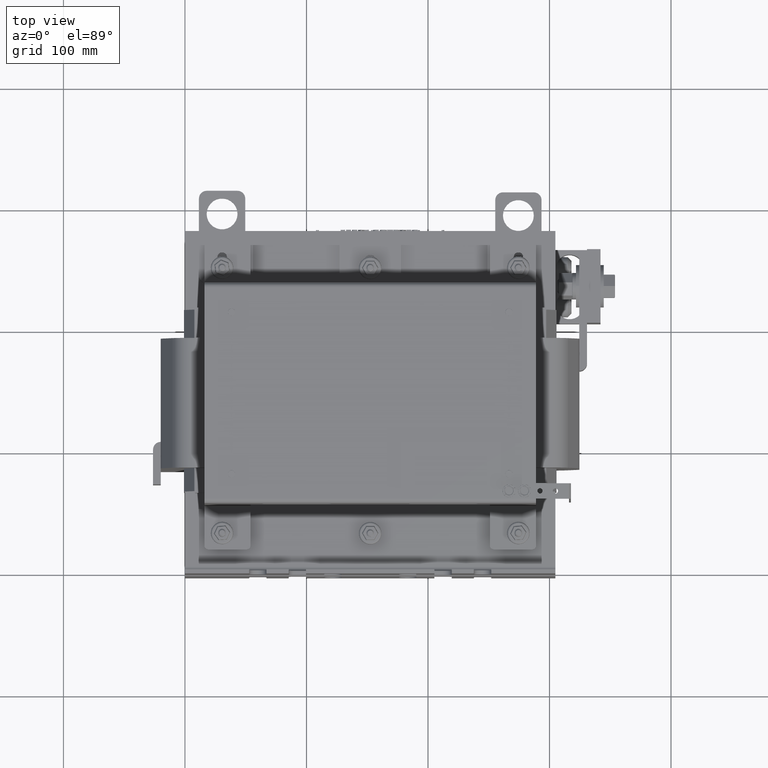
[diagram: clean part render]
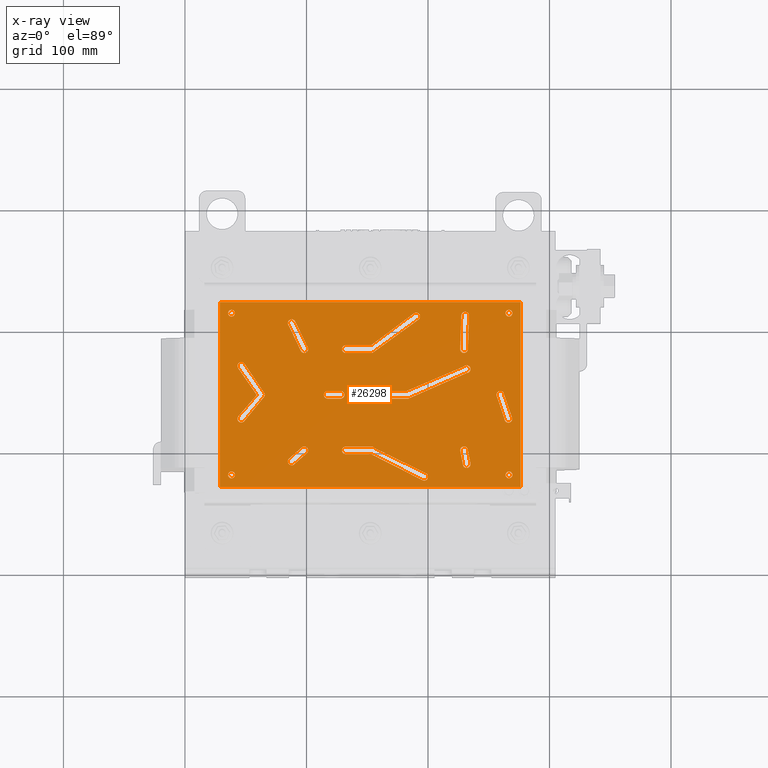
[diagram: x-ray — body ghosted, one internal face saturated and labeled with its STEP entity id]
A machine part, top view, then the same camera in x-ray: the body is ghosted and one INTERNAL B-rep face — a face not visible from any outside direction — is saturated and labeled: STEP entity #26298.
In plain terms, the highlighted planar face has unit normal (0, -0, 1).
Its self-contained STEP definition (entity closure, byte-faithful):
#1879=FACE_BOUND('',#5372,.T.);
#1880=FACE_BOUND('',#5373,.T.);
#1881=FACE_BOUND('',#5374,.T.);
#1882=FACE_BOUND('',#5375,.T.);
#1883=FACE_BOUND('',#5376,.T.);
#1884=FACE_BOUND('',#5377,.T.);
#1885=FACE_BOUND('',#5378,.T.);
#1886=FACE_BOUND('',#5379,.T.);
#1887=FACE_BOUND('',#5380,.T.);
#1888=FACE_BOUND('',#5381,.T.);
#1889=FACE_BOUND('',#5382,.T.);
#1890=FACE_BOUND('',#5383,.T.);
#1891=FACE_BOUND('',#5384,.T.);
#1892=FACE_BOUND('',#5385,.T.);
#2582=PLANE('',#28913);
#3795=FACE_OUTER_BOUND('',#5371,.T.);
#5371=EDGE_LOOP('',(#22557,#22558,#22559,#22560));
#5372=EDGE_LOOP('',(#22561,#22562,#22563,#22564));
#5373=EDGE_LOOP('',(#22565,#22566,#22567,#22568));
#5374=EDGE_LOOP('',(#22569,#22570,#22571,#22572,#22573,#22574,#22575,#22576));
#5375=EDGE_LOOP('',(#22577,#22578,#22579,#22580,#22581,#22582,#22583));
#5376=EDGE_LOOP('',(#22584,#22585,#22586,#22587,#22588,#22589,#22590));
#5377=EDGE_LOOP('',(#22591,#22592,#22593,#22594));
#5378=EDGE_LOOP('',(#22595,#22596,#22597,#22598,#22599,#22600,#22601));
#5379=EDGE_LOOP('',(#22602,#22603,#22604,#22605));
#5380=EDGE_LOOP('',(#22606,#22607,#22608,#22609));
#5381=EDGE_LOOP('',(#22610,#22611,#22612,#22613));
#5382=EDGE_LOOP('',(#22614));
#5383=EDGE_LOOP('',(#22615));
#5384=EDGE_LOOP('',(#22616));
#5385=EDGE_LOOP('',(#22617));
#7662=LINE('',#44718,#10065);
#7667=LINE('',#44732,#10070);
#7671=LINE('',#44741,#10074);
#7677=LINE('',#44753,#10080);
#7678=LINE('',#44766,#10081);
#7682=LINE('',#44775,#10085);
#7687=LINE('',#44789,#10090);
#7691=LINE('',#44801,#10094);
#7694=LINE('',#44808,#10097);
#7699=LINE('',#44822,#10102);
#7705=LINE('',#44834,#10108);
#7706=LINE('',#44838,#10109);
#7716=LINE('',#44887,#10119);
#7718=LINE('',#44905,#10121);
#7719=LINE('',#44907,#10122);
#7720=LINE('',#44909,#10123);
#7721=LINE('',#44910,#10124);
#7722=LINE('',#44913,#10125);
#7723=LINE('',#44916,#10126);
#7724=LINE('',#44920,#10127);
#7725=LINE('',#44924,#10128);
#7726=LINE('',#44926,#10129);
#7727=LINE('',#44930,#10130);
#7728=LINE('',#44934,#10131);
#7729=LINE('',#44938,#10132);
#7730=LINE('',#44942,#10133);
#7731=LINE('',#44947,#10134);
#7732=LINE('',#44950,#10135);
#7733=LINE('',#44955,#10136);
#7734=LINE('',#44958,#10137);
#7735=LINE('',#44961,#10138);
#7736=LINE('',#44965,#10139);
#10065=VECTOR('',#34062,0.393700787401575);
#10070=VECTOR('',#34075,0.393700787401575);
#10074=VECTOR('',#34081,0.393700787401575);
#10080=VECTOR('',#34089,0.393700787401575);
#10081=VECTOR('',#34106,0.393700787401575);
#10085=VECTOR('',#34112,0.393700787401575);
#10090=VECTOR('',#34125,0.393700787401575);
#10094=VECTOR('',#34137,0.393700787401575);
#10097=VECTOR('',#34142,0.393700787401575);
#10102=VECTOR('',#34155,0.393700787401575);
#10108=VECTOR('',#34163,0.393700787401575);
#10109=VECTOR('',#34166,0.393700787401575);
#10119=VECTOR('',#34222,0.393700787401575);
#10121=VECTOR('',#34240,0.393700787401575);
#10122=VECTOR('',#34241,0.393700787401575);
#10123=VECTOR('',#34242,0.393700787401575);
#10124=VECTOR('',#34243,0.393700787401575);
#10125=VECTOR('',#34246,0.393700787401575);
#10126=VECTOR('',#34249,0.393700787401575);
#10127=VECTOR('',#34252,0.393700787401575);
#10128=VECTOR('',#34255,0.393700787401575);
#10129=VECTOR('',#34256,0.393700787401575);
#10130=VECTOR('',#34259,0.393700787401575);
#10131=VECTOR('',#34262,0.393700787401575);
#10132=VECTOR('',#34265,0.393700787401575);
#10133=VECTOR('',#34268,0.393700787401575);
#10134=VECTOR('',#34273,0.393700787401575);
#10135=VECTOR('',#34276,0.393700787401575);
#10136=VECTOR('',#34279,0.393700787401575);
#10137=VECTOR('',#34282,0.393700787401575);
#10138=VECTOR('',#34283,0.393700787401575);
#10139=VECTOR('',#34286,0.393700787401575);
#11130=CIRCLE('',#28854,0.125);
#11133=CIRCLE('',#28862,0.125);
#11136=CIRCLE('',#28869,0.125000000000001);
#11138=CIRCLE('',#28873,0.125);
#11140=CIRCLE('',#28878,0.125);
#11142=CIRCLE('',#28884,0.125);
#11145=CIRCLE('',#28888,0.125);
#11149=CIRCLE('',#28894,0.125);
#11152=CIRCLE('',#28898,0.125);
#11164=CIRCLE('',#28914,0.125000000000001);
#11165=CIRCLE('',#28915,0.125);
#11166=CIRCLE('',#28916,0.125);
#11167=CIRCLE('',#28917,0.125);
#11168=CIRCLE('',#28918,0.125);
#11169=CIRCLE('',#28919,0.110977153248394);
#11170=CIRCLE('',#28920,0.125);
#11171=CIRCLE('',#28921,0.125);
#11172=CIRCLE('',#28922,0.125);
#11173=CIRCLE('',#28923,0.125);
#11174=CIRCLE('',#28924,0.125);
#11175=CIRCLE('',#28925,0.125);
#11176=CIRCLE('',#28926,0.125);
#11177=CIRCLE('',#28927,0.125);
#11178=CIRCLE('',#28928,0.125);
#11179=CIRCLE('',#28929,0.125);
#11180=CIRCLE('',#28930,0.11);
#11181=CIRCLE('',#28931,0.11);
#11182=CIRCLE('',#28932,0.11);
#11183=CIRCLE('',#28933,0.11);
#13153=VERTEX_POINT('',#44716);
#13154=VERTEX_POINT('',#44717);
#13157=VERTEX_POINT('',#44725);
#13159=VERTEX_POINT('',#44731);
#13161=VERTEX_POINT('',#44737);
#13163=VERTEX_POINT('',#44740);
#13166=VERTEX_POINT('',#44747);
#13168=VERTEX_POINT('',#44751);
#13171=VERTEX_POINT('',#44764);
#13172=VERTEX_POINT('',#44765);
#13175=VERTEX_POINT('',#44773);
#13176=VERTEX_POINT('',#44774);
#13179=VERTEX_POINT('',#44785);
#13181=VERTEX_POINT('',#44788);
#13183=VERTEX_POINT('',#44794);
#13185=VERTEX_POINT('',#44800);
#13187=VERTEX_POINT('',#44806);
#13188=VERTEX_POINT('',#44807);
#13191=VERTEX_POINT('',#44815);
#13193=VERTEX_POINT('',#44821);
#13196=VERTEX_POINT('',#44828);
#13198=VERTEX_POINT('',#44832);
#13199=VERTEX_POINT('',#44836);
#13200=VERTEX_POINT('',#44837);
#13205=VERTEX_POINT('',#44857);
#13208=VERTEX_POINT('',#44865);
#13216=VERTEX_POINT('',#44885);
#13223=VERTEX_POINT('',#44903);
#13224=VERTEX_POINT('',#44904);
#13225=VERTEX_POINT('',#44906);
#13226=VERTEX_POINT('',#44908);
#13227=VERTEX_POINT('',#44912);
#13228=VERTEX_POINT('',#44914);
#13229=VERTEX_POINT('',#44917);
#13230=VERTEX_POINT('',#44919);
#13231=VERTEX_POINT('',#44922);
#13232=VERTEX_POINT('',#44923);
#13233=VERTEX_POINT('',#44925);
#13234=VERTEX_POINT('',#44927);
#13235=VERTEX_POINT('',#44929);
#13236=VERTEX_POINT('',#44931);
#13237=VERTEX_POINT('',#44933);
#13238=VERTEX_POINT('',#44936);
#13239=VERTEX_POINT('',#44937);
#13240=VERTEX_POINT('',#44939);
#13241=VERTEX_POINT('',#44941);
#13242=VERTEX_POINT('',#44944);
#13243=VERTEX_POINT('',#44946);
#13244=VERTEX_POINT('',#44948);
#13245=VERTEX_POINT('',#44951);
#13246=VERTEX_POINT('',#44952);
#13247=VERTEX_POINT('',#44954);
#13248=VERTEX_POINT('',#44956);
#13249=VERTEX_POINT('',#44959);
#13250=VERTEX_POINT('',#44960);
#13251=VERTEX_POINT('',#44962);
#13252=VERTEX_POINT('',#44964);
#13253=VERTEX_POINT('',#44968);
#13254=VERTEX_POINT('',#44970);
#13255=VERTEX_POINT('',#44972);
#13256=VERTEX_POINT('',#44974);
#16372=EDGE_CURVE('',#13153,#13154,#7662,.T.);
#16376=EDGE_CURVE('',#13157,#13153,#11130,.T.);
#16379=EDGE_CURVE('',#13159,#13157,#7667,.T.);
#16383=EDGE_CURVE('',#13163,#13161,#7671,.T.);
#16389=EDGE_CURVE('',#13166,#13168,#7677,.T.);
#16391=EDGE_CURVE('',#13168,#13163,#11133,.T.);
#16394=EDGE_CURVE('',#13171,#13172,#7678,.T.);
#16398=EDGE_CURVE('',#13175,#13176,#7682,.T.);
#16402=EDGE_CURVE('',#13172,#13175,#11136,.T.);
#16405=EDGE_CURVE('',#13181,#13179,#7687,.T.);
#16408=EDGE_CURVE('',#13183,#13181,#11138,.T.);
#16411=EDGE_CURVE('',#13185,#13183,#7691,.T.);
#16414=EDGE_CURVE('',#13187,#13188,#7694,.T.);
#16418=EDGE_CURVE('',#13191,#13187,#11140,.T.);
#16421=EDGE_CURVE('',#13193,#13191,#7699,.T.);
#16427=EDGE_CURVE('',#13196,#13198,#7705,.T.);
#16428=EDGE_CURVE('',#13199,#13200,#7706,.T.);
#16432=EDGE_CURVE('',#13198,#13199,#11142,.T.);
#16435=EDGE_CURVE('',#13154,#13159,#11145,.T.);
#16439=EDGE_CURVE('',#13205,#13185,#11149,.T.);
#16444=EDGE_CURVE('',#13179,#13208,#11152,.T.);
#16454=EDGE_CURVE('',#13188,#13216,#7716,.T.);
#16462=EDGE_CURVE('',#13223,#13224,#7718,.T.);
#16463=EDGE_CURVE('',#13225,#13223,#7719,.T.);
#16464=EDGE_CURVE('',#13226,#13225,#7720,.T.);
#16465=EDGE_CURVE('',#13224,#13226,#7721,.T.);
#16466=EDGE_CURVE('',#13161,#13166,#11164,.T.);
#16467=EDGE_CURVE('',#13208,#13227,#7722,.T.);
#16468=EDGE_CURVE('',#13227,#13228,#11165,.T.);
#16469=EDGE_CURVE('',#13228,#13205,#7723,.T.);
#16470=EDGE_CURVE('',#13216,#13229,#11166,.T.);
#16471=EDGE_CURVE('',#13229,#13230,#7724,.T.);
#16472=EDGE_CURVE('',#13230,#13193,#11167,.T.);
#16473=EDGE_CURVE('',#13231,#13232,#7725,.T.);
#16474=EDGE_CURVE('',#13232,#13233,#7726,.T.);
#16475=EDGE_CURVE('',#13233,#13234,#11168,.T.);
#16476=EDGE_CURVE('',#13234,#13235,#7727,.T.);
#16477=EDGE_CURVE('',#13235,#13236,#11169,.T.);
#16478=EDGE_CURVE('',#13236,#13237,#7728,.T.);
#16479=EDGE_CURVE('',#13237,#13231,#11170,.T.);
#16480=EDGE_CURVE('',#13238,#13239,#7729,.T.);
#16481=EDGE_CURVE('',#13239,#13240,#11171,.T.);
#16482=EDGE_CURVE('',#13240,#13241,#7730,.T.);
#16483=EDGE_CURVE('',#13241,#13238,#11172,.T.);
#16484=EDGE_CURVE('',#13200,#13242,#11173,.T.);
#16485=EDGE_CURVE('',#13242,#13243,#7731,.T.);
#16486=EDGE_CURVE('',#13243,#13244,#11174,.T.);
#16487=EDGE_CURVE('',#13244,#13196,#7732,.T.);
#16488=EDGE_CURVE('',#13245,#13246,#11175,.T.);
#16489=EDGE_CURVE('',#13246,#13247,#7733,.T.);
#16490=EDGE_CURVE('',#13247,#13248,#11176,.T.);
#16491=EDGE_CURVE('',#13248,#13245,#7734,.T.);
#16492=EDGE_CURVE('',#13249,#13250,#7735,.T.);
#16493=EDGE_CURVE('',#13250,#13251,#11177,.T.);
#16494=EDGE_CURVE('',#13251,#13252,#7736,.T.);
#16495=EDGE_CURVE('',#13252,#13249,#11178,.T.);
#16496=EDGE_CURVE('',#13176,#13171,#11179,.T.);
#16497=EDGE_CURVE('',#13253,#13253,#11180,.T.);
#16498=EDGE_CURVE('',#13254,#13254,#11181,.T.);
#16499=EDGE_CURVE('',#13255,#13255,#11182,.T.);
#16500=EDGE_CURVE('',#13256,#13256,#11183,.T.);
#22557=ORIENTED_EDGE('',*,*,#16462,.F.);
#22558=ORIENTED_EDGE('',*,*,#16463,.F.);
#22559=ORIENTED_EDGE('',*,*,#16464,.F.);
#22560=ORIENTED_EDGE('',*,*,#16465,.F.);
#22561=ORIENTED_EDGE('',*,*,#16372,.T.);
#22562=ORIENTED_EDGE('',*,*,#16435,.T.);
#22563=ORIENTED_EDGE('',*,*,#16379,.T.);
#22564=ORIENTED_EDGE('',*,*,#16376,.T.);
#22565=ORIENTED_EDGE('',*,*,#16383,.T.);
#22566=ORIENTED_EDGE('',*,*,#16466,.T.);
#22567=ORIENTED_EDGE('',*,*,#16389,.T.);
#22568=ORIENTED_EDGE('',*,*,#16391,.T.);
#22569=ORIENTED_EDGE('',*,*,#16405,.T.);
#22570=ORIENTED_EDGE('',*,*,#16444,.T.);
#22571=ORIENTED_EDGE('',*,*,#16467,.T.);
#22572=ORIENTED_EDGE('',*,*,#16468,.T.);
#22573=ORIENTED_EDGE('',*,*,#16469,.T.);
#22574=ORIENTED_EDGE('',*,*,#16439,.T.);
#22575=ORIENTED_EDGE('',*,*,#16411,.T.);
#22576=ORIENTED_EDGE('',*,*,#16408,.T.);
#22577=ORIENTED_EDGE('',*,*,#16414,.T.);
#22578=ORIENTED_EDGE('',*,*,#16454,.T.);
#22579=ORIENTED_EDGE('',*,*,#16470,.T.);
#22580=ORIENTED_EDGE('',*,*,#16471,.T.);
#22581=ORIENTED_EDGE('',*,*,#16472,.T.);
#22582=ORIENTED_EDGE('',*,*,#16421,.T.);
#22583=ORIENTED_EDGE('',*,*,#16418,.T.);
#22584=ORIENTED_EDGE('',*,*,#16473,.T.);
#22585=ORIENTED_EDGE('',*,*,#16474,.T.);
#22586=ORIENTED_EDGE('',*,*,#16475,.T.);
#22587=ORIENTED_EDGE('',*,*,#16476,.T.);
#22588=ORIENTED_EDGE('',*,*,#16477,.T.);
#22589=ORIENTED_EDGE('',*,*,#16478,.T.);
#22590=ORIENTED_EDGE('',*,*,#16479,.T.);
#22591=ORIENTED_EDGE('',*,*,#16480,.T.);
#22592=ORIENTED_EDGE('',*,*,#16481,.T.);
#22593=ORIENTED_EDGE('',*,*,#16482,.T.);
#22594=ORIENTED_EDGE('',*,*,#16483,.T.);
#22595=ORIENTED_EDGE('',*,*,#16427,.T.);
#22596=ORIENTED_EDGE('',*,*,#16432,.T.);
#22597=ORIENTED_EDGE('',*,*,#16428,.T.);
#22598=ORIENTED_EDGE('',*,*,#16484,.T.);
#22599=ORIENTED_EDGE('',*,*,#16485,.T.);
#22600=ORIENTED_EDGE('',*,*,#16486,.T.);
#22601=ORIENTED_EDGE('',*,*,#16487,.T.);
#22602=ORIENTED_EDGE('',*,*,#16488,.T.);
#22603=ORIENTED_EDGE('',*,*,#16489,.T.);
#22604=ORIENTED_EDGE('',*,*,#16490,.T.);
#22605=ORIENTED_EDGE('',*,*,#16491,.T.);
#22606=ORIENTED_EDGE('',*,*,#16492,.T.);
#22607=ORIENTED_EDGE('',*,*,#16493,.T.);
#22608=ORIENTED_EDGE('',*,*,#16494,.T.);
#22609=ORIENTED_EDGE('',*,*,#16495,.T.);
#22610=ORIENTED_EDGE('',*,*,#16394,.T.);
#22611=ORIENTED_EDGE('',*,*,#16402,.T.);
#22612=ORIENTED_EDGE('',*,*,#16398,.T.);
#22613=ORIENTED_EDGE('',*,*,#16496,.T.);
#22614=ORIENTED_EDGE('',*,*,#16497,.T.);
#22615=ORIENTED_EDGE('',*,*,#16498,.T.);
#22616=ORIENTED_EDGE('',*,*,#16499,.T.);
#22617=ORIENTED_EDGE('',*,*,#16500,.T.);
#26298=ADVANCED_FACE('',(#3795,#1879,#1880,#1881,#1882,#1883,#1884,#1885,
#1886,#1887,#1888,#1889,#1890,#1891,#1892),#2582,.T.);
#28854=AXIS2_PLACEMENT_3D('',#44726,#34068,#34069);
#28862=AXIS2_PLACEMENT_3D('',#44758,#34096,#34097);
#28869=AXIS2_PLACEMENT_3D('',#44782,#34118,#34119);
#28873=AXIS2_PLACEMENT_3D('',#44795,#34130,#34131);
#28878=AXIS2_PLACEMENT_3D('',#44816,#34148,#34149);
#28884=AXIS2_PLACEMENT_3D('',#44845,#34172,#34173);
#28888=AXIS2_PLACEMENT_3D('',#44849,#34180,#34181);
#28894=AXIS2_PLACEMENT_3D('',#44858,#34192,#34193);
#28898=AXIS2_PLACEMENT_3D('',#44867,#34202,#34203);
#28913=AXIS2_PLACEMENT_3D('',#44902,#34238,#34239);
#28914=AXIS2_PLACEMENT_3D('',#44911,#34244,#34245);
#28915=AXIS2_PLACEMENT_3D('',#44915,#34247,#34248);
#28916=AXIS2_PLACEMENT_3D('',#44918,#34250,#34251);
#28917=AXIS2_PLACEMENT_3D('',#44921,#34253,#34254);
#28918=AXIS2_PLACEMENT_3D('',#44928,#34257,#34258);
#28919=AXIS2_PLACEMENT_3D('',#44932,#34260,#34261);
#28920=AXIS2_PLACEMENT_3D('',#44935,#34263,#34264);
#28921=AXIS2_PLACEMENT_3D('',#44940,#34266,#34267);
#28922=AXIS2_PLACEMENT_3D('',#44943,#34269,#34270);
#28923=AXIS2_PLACEMENT_3D('',#44945,#34271,#34272);
#28924=AXIS2_PLACEMENT_3D('',#44949,#34274,#34275);
#28925=AXIS2_PLACEMENT_3D('',#44953,#34277,#34278);
#28926=AXIS2_PLACEMENT_3D('',#44957,#34280,#34281);
#28927=AXIS2_PLACEMENT_3D('',#44963,#34284,#34285);
#28928=AXIS2_PLACEMENT_3D('',#44966,#34287,#34288);
#28929=AXIS2_PLACEMENT_3D('',#44967,#34289,#34290);
#28930=AXIS2_PLACEMENT_3D('',#44969,#34291,#34292);
#28931=AXIS2_PLACEMENT_3D('',#44971,#34293,#34294);
#28932=AXIS2_PLACEMENT_3D('',#44973,#34295,#34296);
#28933=AXIS2_PLACEMENT_3D('',#44975,#34297,#34298);
#34062=DIRECTION('',(-0.189120695263455,0.98195384953829,0.));
#34068=DIRECTION('center_axis',(0.,0.,-1.));
#34069=DIRECTION('ref_axis',(-1.,-3.9163772837171E-14,0.));
#34075=DIRECTION('',(0.189120695263462,-0.981953849538289,0.));
#34081=DIRECTION('',(-0.31958107040843,0.947558937183646,0.));
#34089=DIRECTION('',(0.326793462565013,-0.945095779709533,0.));
#34096=DIRECTION('center_axis',(0.,0.,-1.));
#34097=DIRECTION('ref_axis',(-1.,7.27327209833176E-14,0.));
#34106=DIRECTION('',(0.0334946231416854,0.999438897692398,0.));
#34112=DIRECTION('',(-0.033365828764387,-0.999443205725501,0.));
#34118=DIRECTION('center_axis',(0.,0.,-1.));
#34119=DIRECTION('ref_axis',(0.997773442943062,-0.0666945017040313,0.));
#34125=DIRECTION('',(-0.809813678529459,-0.586687144964491,0.));
#34130=DIRECTION('center_axis',(0.,0.,-1.));
#34131=DIRECTION('ref_axis',(0.586687144964494,-0.809813678529457,0.));
#34137=DIRECTION('',(0.801607077258319,0.597851230398813,0.));
#34142=DIRECTION('',(-0.891686044096794,0.452654392183497,0.));
#34148=DIRECTION('center_axis',(0.,0.,-1.));
#34149=DIRECTION('ref_axis',(0.452654392183499,0.891686044096793,0.));
#34155=DIRECTION('',(0.898166042352089,-0.439656411718953,0.));
#34163=DIRECTION('',(0.919457470021028,0.393189471912118,0.));
#34166=DIRECTION('',(-0.915538818327686,-0.402229626128092,0.));
#34172=DIRECTION('center_axis',(0.,0.,-1.));
#34173=DIRECTION('ref_axis',(0.,-1.,0.));
#34180=DIRECTION('center_axis',(0.,0.,-1.));
#34181=DIRECTION('ref_axis',(-1.,0.,0.));
#34192=DIRECTION('center_axis',(0.,0.,-1.));
#34193=DIRECTION('ref_axis',(-0.000649313761124934,-0.999999789195798,0.));
#34202=DIRECTION('center_axis',(0.,0.,-1.));
#34203=DIRECTION('ref_axis',(-0.000649313761124934,-0.999999789195798,0.));
#34222=DIRECTION('',(-0.999998844598271,-0.00152013227161745,0.));
#34238=DIRECTION('center_axis',(0.,0.,1.));
#34239=DIRECTION('ref_axis',(1.,0.,0.));
#34240=DIRECTION('',(2.33117695459351E-16,-1.,0.));
#34241=DIRECTION('',(1.,2.86914086719201E-16,0.));
#34242=DIRECTION('',(0.,1.,0.));
#34243=DIRECTION('',(-1.,-7.17285216798001E-16,0.));
#34244=DIRECTION('center_axis',(0.,0.,-1.));
#34245=DIRECTION('ref_axis',(-1.,0.,0.));
#34246=DIRECTION('',(-0.999999789195797,0.000649313761124667,0.));
#34247=DIRECTION('center_axis',(0.,0.,-1.));
#34248=DIRECTION('ref_axis',(0.168000000000007,0.985786995247958,0.));
#34249=DIRECTION('',(0.999997534758301,0.002220467815553,0.));
#34250=DIRECTION('center_axis',(0.,0.,-1.));
#34251=DIRECTION('ref_axis',(-0.114062938577571,-0.993473525587395,0.));
#34252=DIRECTION('',(0.999998844598271,0.00152013227161722,0.));
#34253=DIRECTION('center_axis',(0.,0.,-1.));
#34254=DIRECTION('ref_axis',(-0.0015201322716194,0.999998844598271,0.));
#34255=DIRECTION('',(0.656828890289127,0.75403966001899,0.));
#34256=DIRECTION('',(-0.569900208126551,0.821713911758413,0.));
#34257=DIRECTION('center_axis',(0.,0.,-1.));
#34258=DIRECTION('ref_axis',(0.829009169031406,0.559235011119527,0.));
#34259=DIRECTION('',(0.559761974676629,-0.82865344487676,0.));
#34260=DIRECTION('center_axis',(0.,0.,-1.));
#34261=DIRECTION('ref_axis',(0.773988726106779,-0.633199377652573,0.));
#34262=DIRECTION('',(-0.633199377652574,-0.773988726106778,0.));
#34263=DIRECTION('center_axis',(0.,0.,-1.));
#34264=DIRECTION('ref_axis',(-0.810941512931037,0.58512721916274,0.));
#34265=DIRECTION('',(0.438083051435493,-0.89893450264464,0.));
#34266=DIRECTION('center_axis',(0.,0.,-1.));
#34267=DIRECTION('ref_axis',(0.902578742692736,0.430524811409517,0.));
#34268=DIRECTION('',(-0.43052481140952,0.902578742692735,0.));
#34269=DIRECTION('center_axis',(0.,0.,-1.));
#34270=DIRECTION('ref_axis',(-0.898934502644641,-0.438083051435493,0.));
#34271=DIRECTION('center_axis',(0.,0.,-1.));
#34272=DIRECTION('ref_axis',(-0.00152013227155224,-0.999998844598271,0.));
#34273=DIRECTION('',(-0.999998844598271,0.00152013227163772,0.));
#34274=DIRECTION('center_axis',(0.,0.,-1.));
#34275=DIRECTION('ref_axis',(0.139472872705688,0.990225892298936,0.));
#34276=DIRECTION('',(0.999998844598271,0.00152013227161511,0.));
#34277=DIRECTION('center_axis',(0.,0.,-1.));
#34278=DIRECTION('ref_axis',(0.659458974459682,-0.751740554316837,0.));
#34279=DIRECTION('',(-0.751740554316836,-0.659458974459683,0.));
#34280=DIRECTION('center_axis',(0.,0.,-1.));
#34281=DIRECTION('ref_axis',(-0.660501431014047,0.750824786237373,0.));
#34282=DIRECTION('',(0.750824786237374,0.660501431014046,0.));
#34283=DIRECTION('',(0.99999998428598,-0.000177279553222082,0.));
#34284=DIRECTION('center_axis',(0.,0.,-1.));
#34285=DIRECTION('ref_axis',(0.000177279553223857,0.99999998428598,0.));
#34286=DIRECTION('',(-0.99999998428598,0.000177279553218712,0.));
#34287=DIRECTION('center_axis',(0.,0.,-1.));
#34288=DIRECTION('ref_axis',(-0.000177279553223859,-0.99999998428598,0.));
#34289=DIRECTION('center_axis',(0.,0.,-1.));
#34290=DIRECTION('ref_axis',(-1.,0.,0.));
#34291=DIRECTION('center_axis',(0.,0.,-1.));
#34292=DIRECTION('ref_axis',(-1.,0.,0.));
#34293=DIRECTION('center_axis',(0.,0.,-1.));
#34294=DIRECTION('ref_axis',(-1.,0.,0.));
#34295=DIRECTION('center_axis',(0.,0.,-1.));
#34296=DIRECTION('ref_axis',(-1.,0.,0.));
#34297=DIRECTION('center_axis',(0.,0.,-1.));
#34298=DIRECTION('ref_axis',(-1.,0.,0.));
#44716=CARTESIAN_POINT('',(8.41162331100637,4.41461050532242,0.0625));
#44717=CARTESIAN_POINT('',(8.32537331100637,4.86243838267184,0.0625));
#44718=CARTESIAN_POINT('',(8.14011042651278,5.82436167907065,0.0625));
#44725=CARTESIAN_POINT('',(8.65268165166215,4.46103745400774,0.0625));
#44726=CARTESIAN_POINT('Origin',(8.52768165166214,4.46103745400774,0.0625));
#44731=CARTESIAN_POINT('',(8.56643165166214,4.90886533135716,0.0625));
#44732=CARTESIAN_POINT('',(8.38116876716853,5.87078862775598,0.0625));
#44737=CARTESIAN_POINT('',(9.51596466680299,6.62933197915266,0.0625));
#44740=CARTESIAN_POINT('',(9.75268165166215,5.92746533135717,0.0625));
#44741=CARTESIAN_POINT('',(9.29354452825029,7.28880843007602,0.0625));
#44747=CARTESIAN_POINT('',(9.74041713043667,6.70694273495842,0.0625));
#44751=CARTESIAN_POINT('',(9.99581862412584,5.96831451417779,0.0625));
#44753=CARTESIAN_POINT('',(9.50816281098218,7.37862868428211,0.0625));
#44758=CARTESIAN_POINT('Origin',(9.87768165166214,5.92746533135716,0.0625));
#44764=CARTESIAN_POINT('',(8.31650178945059,8.19147428190044,0.0625));
#44765=CARTESIAN_POINT('',(8.35268165166214,9.27103745400774,0.0625));
#44766=CARTESIAN_POINT('',(8.3081778028214,7.94309662480913,0.0625));
#44773=CARTESIAN_POINT('',(8.60268165166231,9.27103745400773,0.0625));
#44774=CARTESIAN_POINT('',(8.56636205237783,8.18311672541218,0.0625));
#44775=CARTESIAN_POINT('',(8.55807676509628,7.93493844278938,0.0625));
#44782=CARTESIAN_POINT('Origin',(8.47768165166223,9.27103745400773,0.0625));
#44785=CARTESIAN_POINT('',(5.51157026994144,8.0901228116983,0.0625));
#44788=CARTESIAN_POINT('',(6.96602561853439,9.14383464513369,0.0625));
#44789=CARTESIAN_POINT('',(5.14825904718868,7.82691408892464,0.0625));
#44794=CARTESIAN_POINT('',(6.81795832161398,9.34526223960716,0.0625));
#44795=CARTESIAN_POINT('Origin',(6.89268972541383,9.24506135494987,0.0625));
#44800=CARTESIAN_POINT('',(5.43293165166214,8.31228745400776,0.0625));
#44801=CARTESIAN_POINT('',(5.73203310824599,8.53536204866369,0.0625));
#44806=CARTESIAN_POINT('',(7.0960998526392,3.93957669849564,0.0625));
#44807=CARTESIAN_POINT('',(5.43293165166214,4.78386533135717,0.0625));
#44808=CARTESIAN_POINT('',(5.03197769733715,4.98740509705171,0.0625));
#44815=CARTESIAN_POINT('',(7.207638703127,4.16330820930176,0.0625));
#44816=CARTESIAN_POINT('Origin',(7.15268165166213,4.05103745400774,0.0625));
#44821=CARTESIAN_POINT('',(5.53383805273943,4.98264133166642,0.0625));
#44822=CARTESIAN_POINT('',(5.97657791256681,4.76591813248277,0.0625));
#44828=CARTESIAN_POINT('',(6.58123513596212,6.82999853628519,0.0625));
#44832=CARTESIAN_POINT('',(8.43730140239134,7.62371193676962,0.0625));
#44834=CARTESIAN_POINT('',(6.98958904518375,7.00462375077872,0.0625));
#44836=CARTESIAN_POINT('',(8.52768165166214,7.41236142697525,0.0625));
#44837=CARTESIAN_POINT('',(6.65721035492815,6.59059510171676,0.0625));
#44838=CARTESIAN_POINT('',(6.15360712964734,6.36934381999437,0.0625));
#44845=CARTESIAN_POINT('Origin',(8.52768165166214,7.53736142697525,0.0625));
#44849=CARTESIAN_POINT('Origin',(8.44143165166214,4.90886533135716,0.0625));
#44857=CARTESIAN_POINT('',(5.43265409318519,8.31228714585254,0.0625));
#44858=CARTESIAN_POINT('Origin',(5.43293165166214,8.18728745400775,0.0625));
#44865=CARTESIAN_POINT('',(5.432850487442,8.06228748035827,0.0625));
#44867=CARTESIAN_POINT('Origin',(5.43293165166214,8.18728745400775,0.0625));
#44885=CARTESIAN_POINT('',(4.6435655962405,4.78266524473041,0.0625));
#44887=CARTESIAN_POINT('',(5.41936647156567,4.78384456603993,0.0625));
#44902=CARTESIAN_POINT('Origin',(5.40268165166214,6.71103745400774,0.0625));
#44903=CARTESIAN_POINT('',(10.2776816516621,9.71103745400774,0.0625));
#44904=CARTESIAN_POINT('',(10.2776816516621,3.71103745400774,0.0625));
#44905=CARTESIAN_POINT('',(10.2776816516621,3.71103745400774,0.0625));
#44906=CARTESIAN_POINT('',(0.527681651662144,9.71103745400773,0.0625));
#44907=CARTESIAN_POINT('',(10.2776816516621,9.71103745400774,0.0625));
#44908=CARTESIAN_POINT('',(0.527681651662144,3.71103745400773,0.0625));
#44909=CARTESIAN_POINT('',(0.527681651662144,9.71103745400773,0.0625));
#44910=CARTESIAN_POINT('',(0.527681651662144,3.71103745400773,0.0625));
#44911=CARTESIAN_POINT('Origin',(9.61543165166214,6.70503745400771,0.0625));
#44912=CARTESIAN_POINT('',(4.62313460241605,8.06281324013585,0.0625));
#44913=CARTESIAN_POINT('',(5.41820476843773,8.06229699002717,0.0625));
#44914=CARTESIAN_POINT('',(4.63268165166214,8.31051082841375,0.0625));
#44915=CARTESIAN_POINT('Origin',(4.61168165166214,8.18728745400776,0.0625));
#44916=CARTESIAN_POINT('',(5.01590396823127,8.31136176333166,0.0625));
#44917=CARTESIAN_POINT('',(4.62593951898434,5.02771470785282,0.0625));
#44918=CARTESIAN_POINT('Origin',(4.61168165166214,4.9035305171544,0.0625));
#44919=CARTESIAN_POINT('',(5.39801070224636,5.02888835953052,0.0625));
#44920=CARTESIAN_POINT('',(5.01558912301128,5.02830702747489,0.0625));
#44921=CARTESIAN_POINT('Origin',(5.43293165166214,4.90886533135717,0.0625));
#44922=CARTESIAN_POINT('',(1.12431396254577,6.00541758981439,0.0625));
#44923=CARTESIAN_POINT('',(1.72810046886345,6.69856458544584,0.0625));
#44924=CARTESIAN_POINT('',(2.22194757314368,7.26550113181015,0.0625));
#44925=CARTESIAN_POINT('',(1.12390825650996,7.56972262186598,0.0625));
#44926=CARTESIAN_POINT('',(2.32190669455072,5.84238164397965,0.0625));
#44927=CARTESIAN_POINT('',(1.32930779779107,7.71220231113294,0.0625));
#44928=CARTESIAN_POINT('Origin',(1.22568165166214,7.642297934743,0.0625));
#44929=CARTESIAN_POINT('',(1.96764325200404,6.76723123940888,0.0625));
#44930=CARTESIAN_POINT('',(2.19966447947497,6.42375455087643,0.0625));
#44931=CARTESIAN_POINT('',(1.96157671713183,6.63483978459203,0.0625));
#44932=CARTESIAN_POINT('Origin',(1.87568165166215,6.70511044896257,0.0625));
#44933=CARTESIAN_POINT('',(1.32757738285076,5.85987323470071,0.0625));
#44934=CARTESIAN_POINT('',(2.67008934800652,7.50088736447792,0.0625));
#44935=CARTESIAN_POINT('Origin',(1.22568165166215,5.93227668741905,0.0625));
#44936=CARTESIAN_POINT('',(2.97004846449272,9.08130470779715,0.0625));
#44937=CARTESIAN_POINT('',(3.37904846449272,8.24204783543719,0.0625));
#44938=CARTESIAN_POINT('',(3.67019507195085,7.64462291814253,0.0625));
#44939=CARTESIAN_POINT('',(3.15385930882555,8.13347185258157,0.0625));
#44940=CARTESIAN_POINT('Origin',(3.26668165166214,8.18728745400776,0.0625));
#44941=CARTESIAN_POINT('',(2.77068165166214,8.93678910367844,0.0625));
#44942=CARTESIAN_POINT('',(3.63863732130216,7.11715335620107,0.0625));
#44943=CARTESIAN_POINT('Origin',(2.85768165166214,9.02654432636771,0.0625));
#44944=CARTESIAN_POINT('',(6.6067416351282,6.58003759843294,0.0625));
#44945=CARTESIAN_POINT('Origin',(6.60693165166214,6.70503745400772,0.0625));
#44946=CARTESIAN_POINT('',(5.80311576075035,6.58125921747037,0.0625));
#44947=CARTESIAN_POINT('',(6.00461346612837,6.58095291395186,0.0625));
#44948=CARTESIAN_POINT('',(5.80311576075035,6.8288156905451,0.0625));
#44949=CARTESIAN_POINT('Origin',(5.78568165166214,6.70503745400773,0.0625));
#44950=CARTESIAN_POINT('',(5.60280964972255,6.82851119840971,0.0625));
#44951=CARTESIAN_POINT('',(3.19509369269561,5.01133563989095,0.0625));
#44952=CARTESIAN_POINT('',(3.3491140234696,4.81489776206758,0.0625));
#44953=CARTESIAN_POINT('Origin',(3.26668165166214,4.90886533135718,0.0625));
#44954=CARTESIAN_POINT('',(2.92441748683473,4.44233579118876,0.0625));
#44955=CARTESIAN_POINT('',(4.39936188280434,5.7362201149301,0.0625));
#44956=CARTESIAN_POINT('',(2.77511897278539,4.64188339407401,0.0625));
#44957=CARTESIAN_POINT('Origin',(2.85768165166215,4.54803029579434,0.0625));
#44958=CARTESIAN_POINT('',(4.2283426094411,5.92028590447152,0.0625));
#44959=CARTESIAN_POINT('',(4.0257038116063,6.83011102305922,0.0625));
#44960=CARTESIAN_POINT('',(4.44070381160629,6.83003745204348,0.0625));
#44961=CARTESIAN_POINT('',(4.71420326465076,6.82998896618188,0.0625));
#44962=CARTESIAN_POINT('',(4.44065949171799,6.58003745597199,0.0625));
#44963=CARTESIAN_POINT('Origin',(4.44068165166214,6.70503745400774,0.0625));
#44964=CARTESIAN_POINT('',(4.02565949171799,6.58011102698773,0.0625));
#44965=CARTESIAN_POINT('',(4.92165894476245,6.57995218460251,0.0625));
#44966=CARTESIAN_POINT('Origin',(4.02568165166214,6.70511102502348,0.0625));
#44967=CARTESIAN_POINT('Origin',(8.44143165166214,8.18728745400774,0.0625));
#44968=CARTESIAN_POINT('',(1.01768165166214,9.35096533135716,0.0625));
#44969=CARTESIAN_POINT('Origin',(0.907681651662145,9.35096533135716,0.0625));
#44970=CARTESIAN_POINT('',(10.0076816516621,4.11096533135718,0.0625));
#44971=CARTESIAN_POINT('Origin',(9.89768165166214,4.11096533135718,0.0625));
#44972=CARTESIAN_POINT('',(10.0076816516621,9.35096533135718,0.0625));
#44973=CARTESIAN_POINT('Origin',(9.89768165166214,9.35096533135718,0.0625));
#44974=CARTESIAN_POINT('',(1.01768165166214,4.11096533135716,0.0625));
#44975=CARTESIAN_POINT('Origin',(0.907681651662145,4.11096533135716,0.0625));